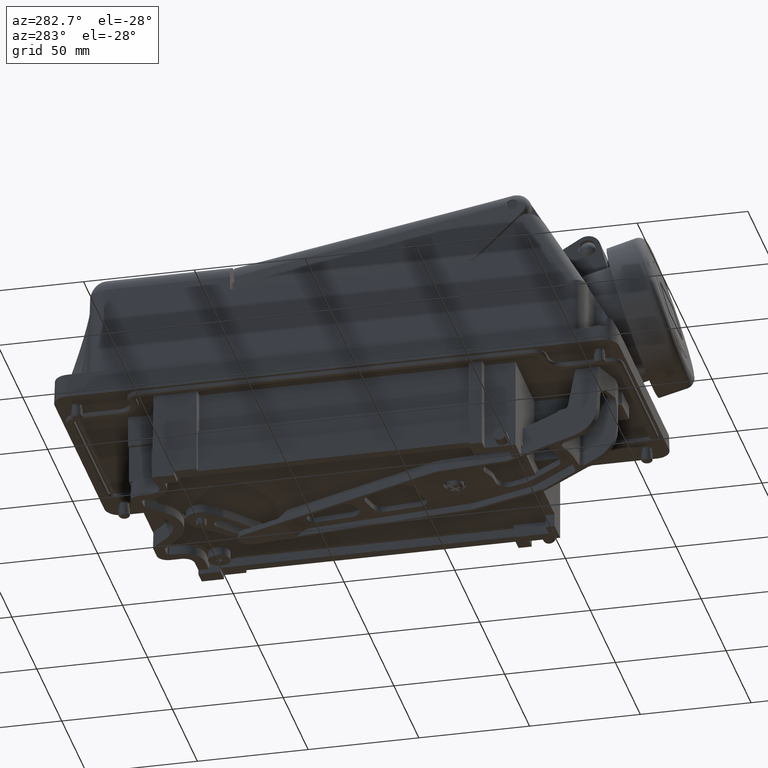
[diagram: clean part render]
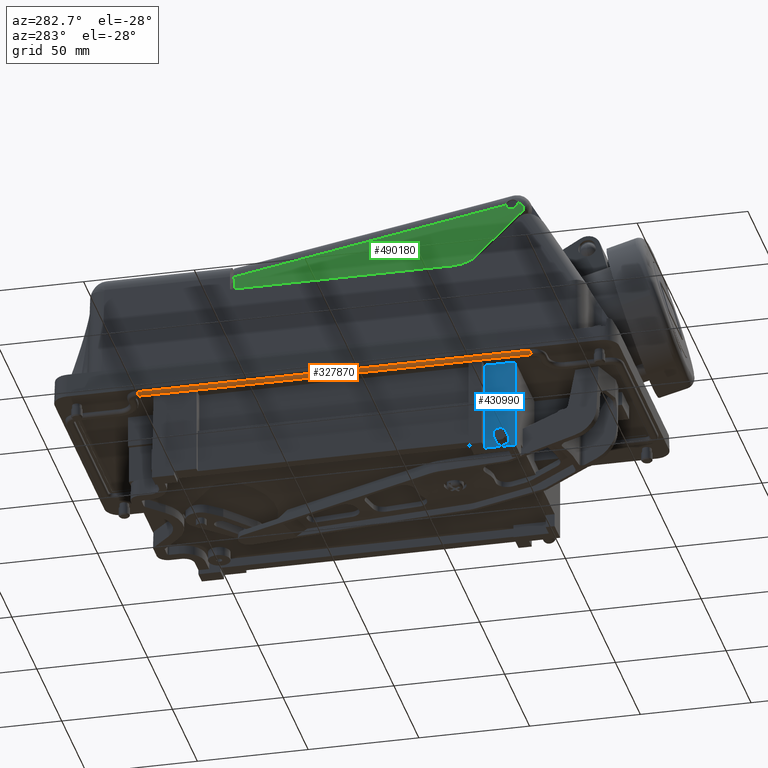
[diagram: same view with three faces highlighted in distinct colors, each labeled with its STEP entity id]
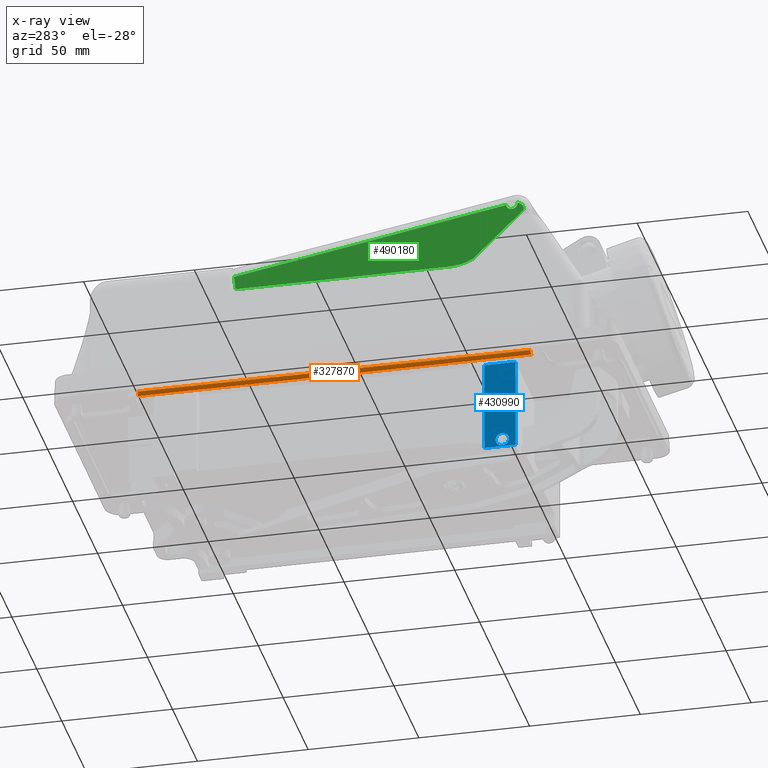
[diagram: x-ray of the same camera — body ghosted, the three highlighted faces saturated]
A machine part, auxiliary view with three faces highlighted in distinct colors.
The next image is the same camera in x-ray (body ghosted, the three faces saturated) — at least one of them is partly hidden behind the body in this view.
Their STEP definitions:

[orange] entity #327870 — the highlighted cylindrical surface (edge-blend (fillet) strip) has radius 1.5 mm, axis along (-0, -1, -0).
#88560=CARTESIAN_POINT('',(218.999999999993,156.200003119478,
-21.9999871454466));
#88570=VERTEX_POINT('',#88560);
#88600=CARTESIAN_POINT('',(218.999999999984,8.56396236650149E-8,
-21.9999960633862));
#88610=DIRECTION('',(-5.8544539874714E-14,-0.999999999999998,
-5.70930824433433E-8));
#88620=VECTOR('',#88610,1.);
#88630=LINE('',#88600,#88620);
#88640=CARTESIAN_POINT('',(218.999999999982,-21.2026620631217,
-21.9999972739116));
#88650=VERTEX_POINT('',#88640);
#88660=EDGE_CURVE('',#88570,#88650,#88630,.T.);
#153050=CARTESIAN_POINT('',(217.499999999983,-21.2026621487612,
-20.4999972739114));
#153060=VERTEX_POINT('',#153050);
#153090=CARTESIAN_POINT('',(217.499999999985,8.78168017652062E-14,
-20.4999960633861));
#153100=DIRECTION('',(-5.8544539874714E-14,-0.999999999999998,
-5.70930824433433E-8));
#153110=VECTOR('',#153100,1.);
#153120=LINE('',#153090,#153110);
#153130=CARTESIAN_POINT('',(217.499999999994,156.200003033838,
-20.4999871454464));
#153140=VERTEX_POINT('',#153130);
#153150=EDGE_CURVE('',#153140,#153060,#153120,.T.);
#327640=CARTESIAN_POINT('',(218.999999999985,0.,-20.4999960633862));
#327650=DIRECTION('',(-5.8544539874714E-14,-0.999999999999998,
-5.70930824433433E-8));
#327660=DIRECTION('',(0.,-5.70930824433433E-8,0.999999999999998));
#327670=AXIS2_PLACEMENT_3D('',#327640,#327650,#327660);
#327680=CYLINDRICAL_SURFACE('',#327670,1.5);
#327690=CARTESIAN_POINT('',(218.999999999994,156.200003033838,
-20.4999871454466));
#327700=DIRECTION('',(-5.8544539874714E-14,-0.999999999999998,
-5.70930824433433E-8));
#327710=DIRECTION('',(0.,-5.70930824433433E-8,0.999999999999998));
#327720=AXIS2_PLACEMENT_3D('',#327690,#327700,#327710);
#327730=CIRCLE('',#327720,1.5);
#327740=EDGE_CURVE('',#153140,#88570,#327730,.T.);
#327750=ORIENTED_EDGE('',*,*,#327740,.T.);
#327760=ORIENTED_EDGE('',*,*,#153150,.F.);
#327770=CARTESIAN_POINT('',(218.999999999983,-21.2026621487613,
-20.4999972739116));
#327780=DIRECTION('',(-5.8544539874714E-14,-0.999999999999998,
-5.70930824433433E-8));
#327790=DIRECTION('',(0.,-5.70930824433433E-8,0.999999999999998));
#327800=AXIS2_PLACEMENT_3D('',#327770,#327780,#327790);
#327810=CIRCLE('',#327800,1.5);
#327820=EDGE_CURVE('',#153060,#88650,#327810,.T.);
#327830=ORIENTED_EDGE('',*,*,#327820,.F.);
#327840=ORIENTED_EDGE('',*,*,#88660,.T.);
#327850=EDGE_LOOP('',(#327840,#327830,#327760,#327750));
#327860=FACE_OUTER_BOUND('',#327850,.T.);
#327870=ADVANCED_FACE('',(#327860),#327680,.T.);

[blue] entity #430990 — the highlighted planar face has unit normal (1, 0, -0).
#307650=CARTESIAN_POINT('',(228.3,-11.982849590749,-19.7999967475205));
#307660=VERTEX_POINT('',#307650);
#307690=CARTESIAN_POINT('',(228.3,0.,-19.7999960633828));
#307700=DIRECTION('',(-6.48840472486595E-21,-0.999999999999998,
-5.70930683826913E-8));
#307710=VECTOR('',#307700,1.);
#307720=LINE('',#307690,#307710);
#307730=CARTESIAN_POINT('',(228.3,2.01715040925158,-19.7999959482175));
#307740=VERTEX_POINT('',#307730);
#307750=EDGE_CURVE('',#307740,#307660,#307720,.T.);
#369030=CARTESIAN_POINT('',(228.299999999995,-11.9828472328052,
-61.0999967475107));
#369040=VERTEX_POINT('',#369030);
#369070=CARTESIAN_POINT('',(228.299999999999,-11.9828488770854,
-32.2999996179162));
#369080=DIRECTION('',(-1.13686833754117E-13,5.70930681183662E-8,
-0.999999999999999));
#369090=VECTOR('',#369080,1.);
#369100=LINE('',#369070,#369090);
#369110=EDGE_CURVE('',#307660,#369040,#369100,.T.);
#429480=CARTESIAN_POINT('',(228.299999999998,81.4301808193508,
-39.0999914142863));
#429490=DIRECTION('',(1.,2.39892630166658E-31,-1.13686833753624E-13));
#429500=DIRECTION('',(-6.49072690477062E-21,-0.999999999999999,
-5.70930396309293E-8));
#429510=AXIS2_PLACEMENT_3D('',#429480,#429490,#429500);
#429520=PLANE('',#429510);
#430150=CARTESIAN_POINT('',(228.299999999999,2.01715112291515,
-32.2999996179181));
#430160=DIRECTION('',(-1.13686833754117E-13,5.70930681183662E-8,
-0.999999999999999));
#430170=VECTOR('',#430160,1.);
#430180=LINE('',#430150,#430170);
#430190=CARTESIAN_POINT('',(228.299999999995,2.01715276719525,
-61.0999959482078));
#430200=VERTEX_POINT('',#430190);
#430210=EDGE_CURVE('',#307740,#430200,#430180,.T.);
#430730=CARTESIAN_POINT('',(228.299999999996,-6.00133045598004,
-57.599996406033));
#430740=DIRECTION('',(1.,-3.94430452610506E-30,-1.13686833753624E-13));
#430750=DIRECTION('',(6.49073013949477E-21,0.999999999999999,
5.70930680509041E-8));
#430760=AXIS2_PLACEMENT_3D('',#430730,#430740,#430750);
#430770=CIRCLE('',#430760,3.);
#430780=CARTESIAN_POINT('',(228.299999999996,-3.00133045598004,
-57.5999962347538));
#430790=VERTEX_POINT('',#430780);
#430800=CARTESIAN_POINT('',(228.299999999996,-9.00133045598004,
-57.5999965773122));
#430810=VERTEX_POINT('',#430800);
#430820=EDGE_CURVE('',#430790,#430810,#430770,.T.);
#430830=ORIENTED_EDGE('',*,*,#430820,.T.);
#430840=EDGE_CURVE('',#430810,#430790,#430770,.T.);
#430850=ORIENTED_EDGE('',*,*,#430840,.T.);
#430860=EDGE_LOOP('',(#430850,#430830));
#430870=FACE_BOUND('',#430860,.T.);
#430880=ORIENTED_EDGE('',*,*,#369110,.F.);
#430890=CARTESIAN_POINT('',(228.299999999995,64.9999972992952,
-61.099992352324));
#430900=DIRECTION('',(-6.48816939759995E-21,-0.999999999999999,
-5.70930681183662E-8));
#430910=VECTOR('',#430900,1.);
#430920=LINE('',#430890,#430910);
#430930=EDGE_CURVE('',#430200,#369040,#430920,.T.);
#430940=ORIENTED_EDGE('',*,*,#430930,.T.);
#430950=ORIENTED_EDGE('',*,*,#430210,.T.);
#430960=ORIENTED_EDGE('',*,*,#307750,.F.);
#430970=EDGE_LOOP('',(#430960,#430950,#430940,#430880));
#430980=FACE_OUTER_BOUND('',#430970,.T.);
#430990=ADVANCED_FACE('',(#430870,#430980),#429520,.F.);

[green] entity #490180 — the highlighted planar face has unit normal (-0.9976, -0, 0.0698).
#248490=CARTESIAN_POINT('',(220.679440621744,-16.507138540739,
54.3432899036227));
#248500=VERTEX_POINT('',#248490);
#248740=CARTESIAN_POINT('',(220.455329169193,-17.168560934273,
51.1383467786122));
#248750=VERTEX_POINT('',#248740);
#248780=CARTESIAN_POINT('',(220.764377505935,-12.9054330887669,
55.5579441429379));
#248790=CARTESIAN_POINT('',(220.780650952117,-14.1785013322091,
55.7906651929485));
#248800=CARTESIAN_POINT('',(220.752699813769,-15.5605887348728,
55.3909452129356));
#248810=CARTESIAN_POINT('',(220.693358078568,-16.8011668465814,
54.5423187921882));
#248820=CARTESIAN_POINT('',(220.615459734294,-17.6497072171694,
53.4283205200282));
#248830=CARTESIAN_POINT('',(220.531838768586,-17.8556813964562,
52.2324849857321));
#248840=CARTESIAN_POINT('',(220.455329169193,-17.168560934273,
51.1383467786122));
#248850=B_SPLINE_CURVE_WITH_KNOTS('',6,(#248780,#248790,#248800,#248810,
#248820,#248830,#248840),.UNSPECIFIED.,.F.,.F.,(7,7),(0.,1.),
.UNSPECIFIED.);
#248860=EDGE_CURVE('',#248500,#248750,#248850,.T.);
#293780=CARTESIAN_POINT('',(218.697484928165,112.400000379033,
26.0000103538711));
#293790=VERTEX_POINT('',#293780);
#293820=CARTESIAN_POINT('',(218.697484928166,0.,26.0000039366086));
#293830=DIRECTION('',(-1.04614004517878E-14,0.999999999999998,
5.7093082593546E-8));
#293840=VECTOR('',#293830,1.);
#293850=LINE('',#293820,#293840);
#293860=CARTESIAN_POINT('',(218.697484928166,15.5120705525702,
26.0000048222405));
#293870=VERTEX_POINT('',#293860);
#293880=EDGE_CURVE('',#293870,#293790,#293850,.T.);
#487760=CARTESIAN_POINT('',(219.153126367915,113.142401714779,
32.5159865588536));
#487770=VERTEX_POINT('',#487760);
#487800=CARTESIAN_POINT('',(216.879387105448,109.437674887209,0.));
#487810=DIRECTION('',(0.0693102300927459,0.112930920923163,
0.991182475179993));
#487820=VECTOR('',#487810,1.);
#487830=LINE('',#487800,#487820);
#487840=EDGE_CURVE('',#293790,#487770,#487830,.T.);
#489700=CARTESIAN_POINT('',(219.220562166619,11.7622676705217,
33.4803576217551));
#489710=DIRECTION('',(-0.997564050259825,-3.98262255282436E-9,
0.0697564737441162));
#489720=DIRECTION('',(5.46506425414992E-15,-0.999999999999998,
-5.70931540444825E-8));
#489730=AXIS2_PLACEMENT_3D('',#489700,#489710,#489720);
#489740=PLANE('',#489730);
#489750=CARTESIAN_POINT('',(219.254786506084,-1.99131127641218E-9,
33.9697878067468));
#489760=DIRECTION('',(0.0493853891036554,-0.706244007851043,
0.706243927207574));
#489770=VECTOR('',#489760,1.);
#489780=LINE('',#489750,#489770);
#489790=CARTESIAN_POINT('',(218.908023537519,4.95894176475978,
29.0108466062395));
#489800=VERTEX_POINT('',#489790);
#489810=EDGE_CURVE('',#489800,#248750,#489780,.T.);
#489820=ORIENTED_EDGE('',*,*,#489810,.T.);
#489830=CARTESIAN_POINT('',(220.096021167036,15.5120694107085,
46.0000048222405));
#489840=DIRECTION('',(-0.997564050259825,-3.98262255282437E-9,
0.0697564737441162));
#489850=DIRECTION('',(0.0697564737441163,-5.69540624495956E-8,
0.997564050259823));
#489860=AXIS2_PLACEMENT_3D('',#489830,#489840,#489850);
#489870=ELLIPSE('',#489860,20.0488379616234,20.);
#489880=EDGE_CURVE('',#293870,#489800,#489870,.T.);
#489890=ORIENTED_EDGE('',*,*,#489880,.T.);
#489900=ORIENTED_EDGE('',*,*,#293880,.F.);
#489910=ORIENTED_EDGE('',*,*,#487840,.F.);
#489920=CARTESIAN_POINT('',(219.163466317302,112.333509667226,
32.6638546779601));
#489930=DIRECTION('',(-0.0125734861027768,0.98362115116075,
-0.179809172281129));
#489940=VECTOR('',#489930,1.);
#489950=LINE('',#489920,#489940);
#489960=CARTESIAN_POINT('',(220.720937455289,-9.50712713975709,
54.9367226704956));
#489970=VERTEX_POINT('',#489960);
#489980=EDGE_CURVE('',#489970,#487770,#489950,.T.);
#489990=ORIENTED_EDGE('',*,*,#489980,.T.);
#490000=CARTESIAN_POINT('',(220.727537723195,-12.0053446821743,
55.0311107563913));
#490010=DIRECTION('',(-0.997564050259825,-3.98262255282436E-9,
0.0697564737441162));
#490020=DIRECTION('',(0.0697564737441163,-5.69541559544946E-8,
0.997564050259823));
#490030=AXIS2_PLACEMENT_3D('',#490000,#490010,#490020);
#490040=ELLIPSE('',#490030,2.50610474520293,2.5);
#490050=CARTESIAN_POINT('',(220.727537723195,-14.5053446821743,
55.0311106136583));
#490060=VERTEX_POINT('',#490050);
#490070=EDGE_CURVE('',#489970,#490060,#490040,.T.);
#490080=ORIENTED_EDGE('',*,*,#490070,.F.);
#490090=CARTESIAN_POINT('',(220.759331341902,-14.4636521043998,
55.4857805462727));
#490100=VERTEX_POINT('',#490090);
#490110=EDGE_CURVE('',#490060,#490100,#490040,.T.);
#490120=ORIENTED_EDGE('',*,*,#490110,.F.);
#490130=EDGE_CURVE('',#490100,#248500,#248850,.T.);
#490140=ORIENTED_EDGE('',*,*,#490130,.F.);
#490150=ORIENTED_EDGE('',*,*,#248860,.F.);
#490160=EDGE_LOOP('',(#490150,#490140,#490120,#490080,#489990,#489910,
#489900,#489890,#489820));
#490170=FACE_OUTER_BOUND('',#490160,.T.);
#490180=ADVANCED_FACE('',(#490170),#489740,.T.);